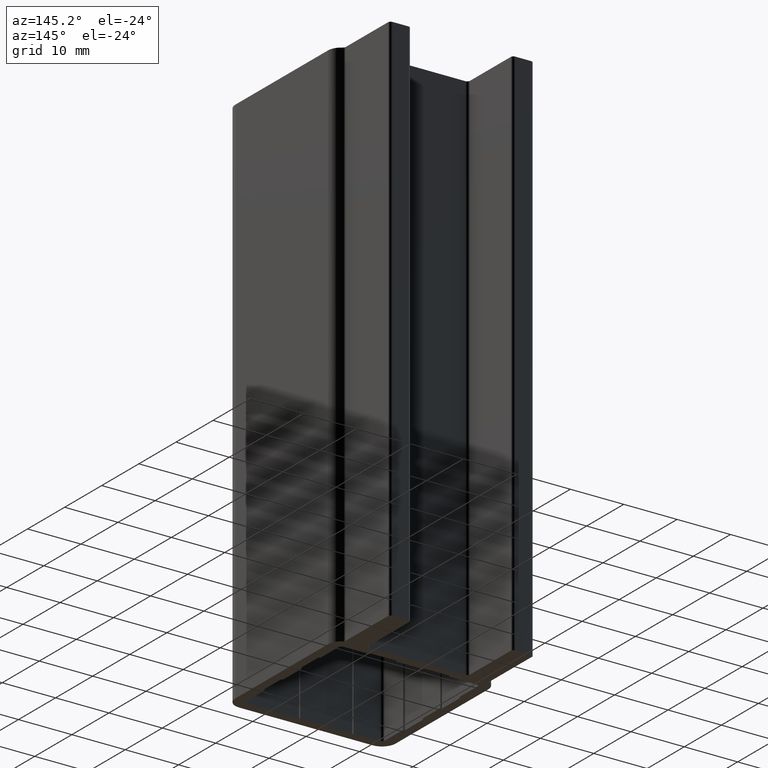
[diagram: clean part render]
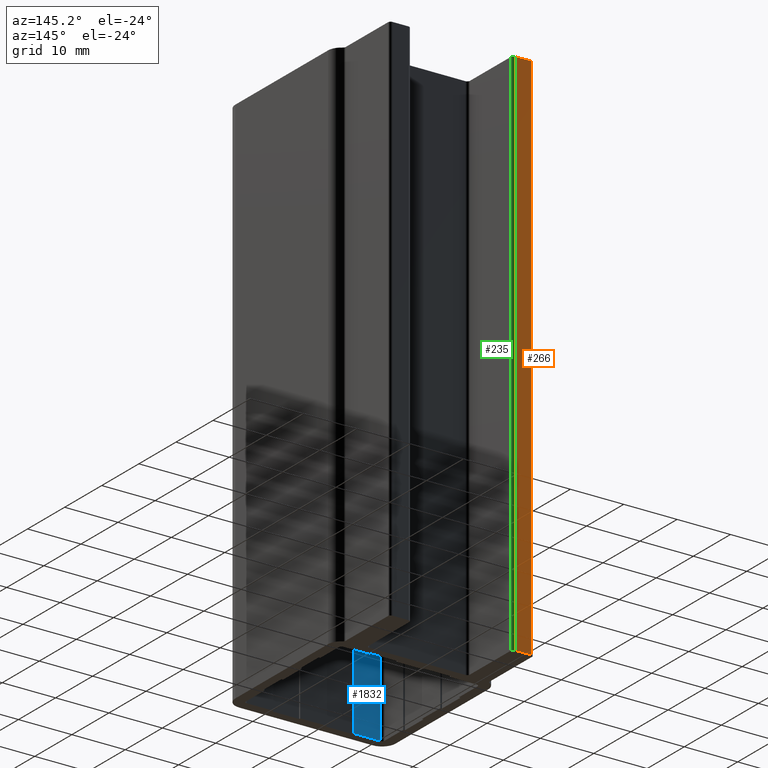
[diagram: same view with three faces highlighted in distinct colors, each labeled with its STEP entity id]
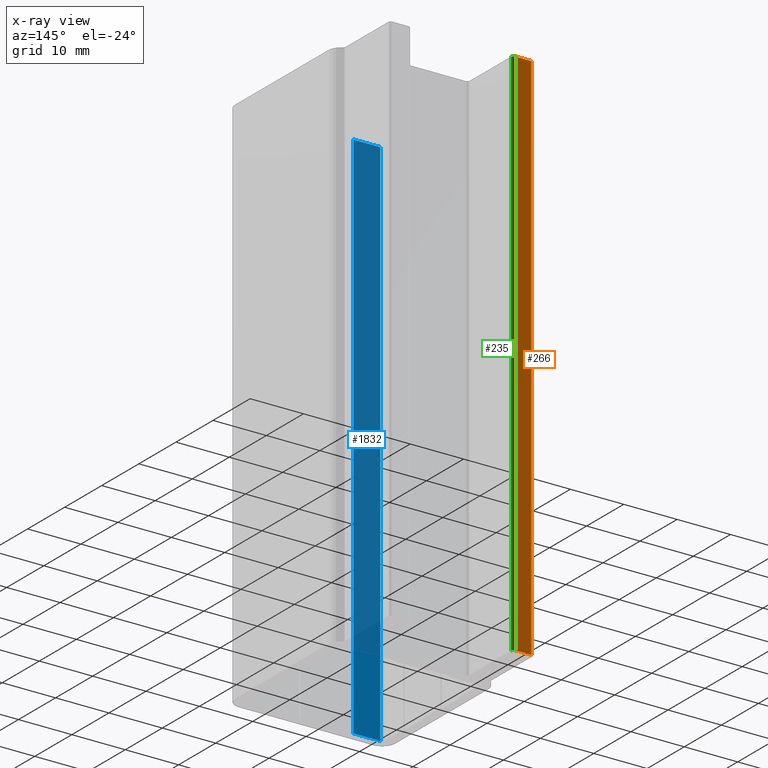
[diagram: x-ray of the same camera — body ghosted, the three highlighted faces saturated]
A machine part, auxiliary view with three faces highlighted in distinct colors.
The next image is the same camera in x-ray (body ghosted, the three faces saturated) — at least one of them is partly hidden behind the body in this view.
Their STEP definitions:

[orange] entity #266 — the highlighted planar face has unit normal (0, -1, 0).
#209=CARTESIAN_POINT('',(-9.999999999994827,42.000000000124601,0.0));
#210=VERTEX_POINT('',#209);
#218=CARTESIAN_POINT('',(-9.999999999994827,42.000000000124601,100.0));
#219=VERTEX_POINT('',#218);
#220=CARTESIAN_POINT('',(-9.999999999994827,42.000000000124601,100.0));
#221=DIRECTION('',(0.0,0.0,-1.0));
#222=VECTOR('',#221,100.0);
#223=LINE('',#220,#222);
#224=EDGE_CURVE('',#219,#210,#223,.T.);
#236=CARTESIAN_POINT('',(-9.999999999994827,42.000000000124601,100.0));
#237=DIRECTION('',(0.0,-1.0,0.0));
#238=DIRECTION('',(-1.0,0.0,0.0));
#239=AXIS2_PLACEMENT_3D('',#236,#237,#238);
#240=PLANE('',#239);
#241=ORIENTED_EDGE('',*,*,#224,.T.);
#242=CARTESIAN_POINT('',(-12.999999999986301,42.000000000124601,0.0));
#243=VERTEX_POINT('',#242);
#244=CARTESIAN_POINT('',(-9.999999999994827,42.000000000124601,0.0));
#245=DIRECTION('',(-1.0,0.0,0.0));
#246=VECTOR('',#245,2.999999999987210);
#247=LINE('',#244,#246);
#248=EDGE_CURVE('',#210,#243,#247,.T.);
#249=ORIENTED_EDGE('',*,*,#248,.T.);
#250=CARTESIAN_POINT('',(-12.999999999986301,42.000000000124601,100.0));
#251=VERTEX_POINT('',#250);
#252=CARTESIAN_POINT('',(-12.999999999986301,42.000000000124601,100.0));
#253=DIRECTION('',(0.0,0.0,-1.0));
#254=VECTOR('',#253,100.0);
#255=LINE('',#252,#254);
#256=EDGE_CURVE('',#251,#243,#255,.T.);
#257=ORIENTED_EDGE('',*,*,#256,.F.);
#258=CARTESIAN_POINT('',(-9.999999999994827,42.000000000124601,100.0));
#259=DIRECTION('',(-1.0,0.0,0.0));
#260=VECTOR('',#259,2.999999999987210);
#261=LINE('',#258,#260);
#262=EDGE_CURVE('',#219,#251,#261,.T.);
#263=ORIENTED_EDGE('',*,*,#262,.F.);
#264=EDGE_LOOP('',(#241,#249,#257,#263));
#265=FACE_OUTER_BOUND('',#264,.T.);
#266=ADVANCED_FACE('',(#265),#240,.F.);

[blue] entity #1832 — the highlighted planar face has unit normal (0, 1, 0).
#868=CARTESIAN_POINT('',(-7.499999999992554,1.999999999997840,100.0));
#869=VERTEX_POINT('',#868);
#876=CARTESIAN_POINT('',(-12.499999999987665,1.999999999997840,100.0));
#877=VERTEX_POINT('',#876);
#878=CARTESIAN_POINT('',(-12.499999999987665,1.999999999997840,100.0));
#879=DIRECTION('',(1.0,0.0,0.0));
#880=VECTOR('',#879,4.999999999995112);
#881=LINE('',#878,#880);
#882=EDGE_CURVE('',#877,#869,#881,.T.);
#1273=CARTESIAN_POINT('',(-12.499999999987665,1.999999999997840,0.0));
#1274=VERTEX_POINT('',#1273);
#1282=CARTESIAN_POINT('',(-7.499999999992554,1.999999999997840,0.0));
#1283=VERTEX_POINT('',#1282);
#1284=CARTESIAN_POINT('',(-12.499999999987665,1.999999999997840,0.0));
#1285=DIRECTION('',(1.0,0.0,0.0));
#1286=VECTOR('',#1285,4.999999999995112);
#1287=LINE('',#1284,#1286);
#1288=EDGE_CURVE('',#1274,#1283,#1287,.T.);
#1805=CARTESIAN_POINT('',(-12.499999999987665,1.999999999997840,100.0));
#1806=DIRECTION('',(0.0,0.0,-1.0));
#1807=VECTOR('',#1806,100.0);
#1808=LINE('',#1805,#1807);
#1809=EDGE_CURVE('',#877,#1274,#1808,.T.);
#1816=CARTESIAN_POINT('',(-12.499999999987665,1.999999999997840,100.0));
#1817=DIRECTION('',(0.0,1.0,0.0));
#1818=DIRECTION('',(1.0,0.0,0.0));
#1819=AXIS2_PLACEMENT_3D('',#1816,#1817,#1818);
#1820=PLANE('',#1819);
#1821=ORIENTED_EDGE('',*,*,#882,.T.);
#1822=CARTESIAN_POINT('',(-7.499999999992554,1.999999999997840,100.0));
#1823=DIRECTION('',(0.0,0.0,-1.0));
#1824=VECTOR('',#1823,100.0);
#1825=LINE('',#1822,#1824);
#1826=EDGE_CURVE('',#869,#1283,#1825,.T.);
#1827=ORIENTED_EDGE('',*,*,#1826,.T.);
#1828=ORIENTED_EDGE('',*,*,#1288,.F.);
#1829=ORIENTED_EDGE('',*,*,#1809,.F.);
#1830=EDGE_LOOP('',(#1821,#1827,#1828,#1829));
#1831=FACE_OUTER_BOUND('',#1830,.T.);
#1832=ADVANCED_FACE('',(#1831),#1820,.T.);

[green] entity #235 — the highlighted cylindrical surface (edge-blend (fillet) strip) has radius 0.5 mm, axis along (0, 0, 1).
#178=CARTESIAN_POINT('',(-9.499999999994827,41.500000000124601,0.0));
#179=VERTEX_POINT('',#178);
#186=CARTESIAN_POINT('',(-9.499999999994827,41.500000000124601,100.0));
#187=VERTEX_POINT('',#186);
#188=CARTESIAN_POINT('',(-9.499999999994827,41.500000000124601,100.0));
#189=DIRECTION('',(0.0,0.0,-1.0));
#190=VECTOR('',#189,100.0);
#191=LINE('',#188,#190);
#192=EDGE_CURVE('',#187,#179,#191,.T.);
#203=CARTESIAN_POINT('',(-9.999999999994827,41.500000000124601,100.0));
#204=DIRECTION('',(0.0,0.0,1.0));
#205=DIRECTION('',(1.0,0.0,0.0));
#206=AXIS2_PLACEMENT_3D('',#203,#204,#205);
#207=CYLINDRICAL_SURFACE('',#206,0.500000000000000);
#208=ORIENTED_EDGE('',*,*,#192,.T.);
#209=CARTESIAN_POINT('',(-9.999999999994827,42.000000000124601,0.0));
#210=VERTEX_POINT('',#209);
#211=CARTESIAN_POINT('',(-9.999999999994827,41.500000000124601,0.0));
#212=DIRECTION('',(0.0,0.0,1.0));
#213=DIRECTION('',(1.0,0.0,0.0));
#214=AXIS2_PLACEMENT_3D('',#211,#212,#213);
#215=CIRCLE('',#214,0.500000000000000);
#216=EDGE_CURVE('',#179,#210,#215,.T.);
#217=ORIENTED_EDGE('',*,*,#216,.T.);
#218=CARTESIAN_POINT('',(-9.999999999994827,42.000000000124601,100.0));
#219=VERTEX_POINT('',#218);
#220=CARTESIAN_POINT('',(-9.999999999994827,42.000000000124601,100.0));
#221=DIRECTION('',(0.0,0.0,-1.0));
#222=VECTOR('',#221,100.0);
#223=LINE('',#220,#222);
#224=EDGE_CURVE('',#219,#210,#223,.T.);
#225=ORIENTED_EDGE('',*,*,#224,.F.);
#226=CARTESIAN_POINT('',(-9.999999999994827,41.500000000124601,100.0));
#227=DIRECTION('',(0.0,0.0,1.0));
#228=DIRECTION('',(1.0,0.0,0.0));
#229=AXIS2_PLACEMENT_3D('',#226,#227,#228);
#230=CIRCLE('',#229,0.500000000000000);
#231=EDGE_CURVE('',#187,#219,#230,.T.);
#232=ORIENTED_EDGE('',*,*,#231,.F.);
#233=EDGE_LOOP('',(#208,#217,#225,#232));
#234=FACE_OUTER_BOUND('',#233,.T.);
#235=ADVANCED_FACE('',(#234),#207,.T.);